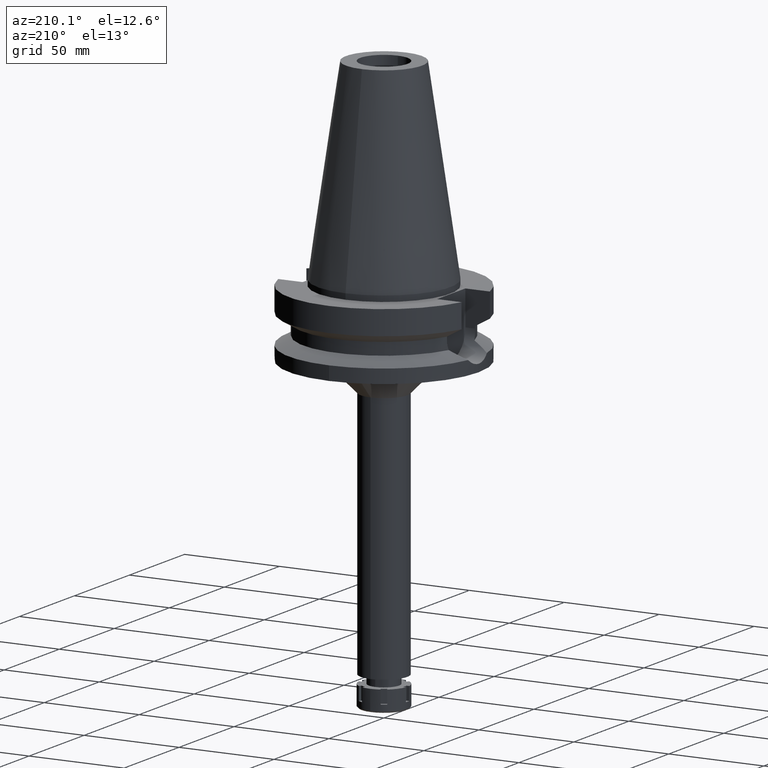
[diagram: clean part render]
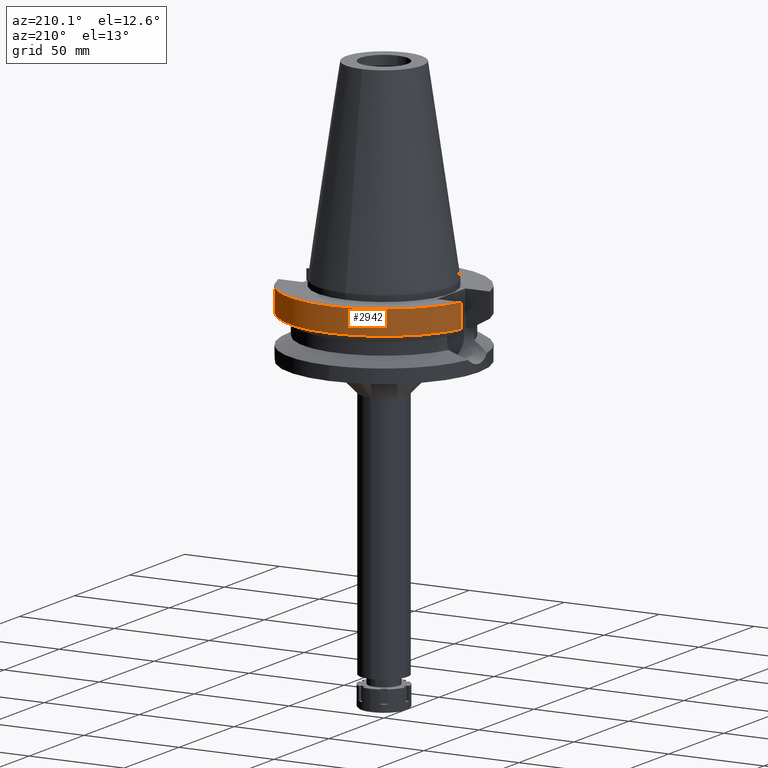
[diagram: same view with one face highlighted and labeled with its STEP entity id]
A machine part, auxiliary view. The second image highlights one B-rep face of the part: STEP entity #2942.
In plain terms, the highlighted cylindrical surface (partial cylindrical patch) has radius 50 mm, axis along (0, 0, -1).
Its self-contained STEP definition (entity closure, byte-faithful):
#27 = CARTESIAN_POINT ( 'NONE',  ( -48.32057015392000210, 12.84999999999999964, -3.000000000000000000 ) ) ;
#42 = DIRECTION ( 'NONE',  ( 8.103406434828602822E-08, 3.047167049311851409E-07, -0.9999999999999503730 ) ) ;
#43 = AXIS2_PLACEMENT_3D ( 'NONE', #3003, #425, #2402 ) ;
#72 = EDGE_CURVE ( 'NONE', #1642, #747, #3582, .T. ) ;
#176 = DIRECTION ( 'NONE',  ( 0.0000000000000000000, 1.000000000000000000, 0.0000000000000000000 ) ) ;
#188 = LINE ( 'NONE', #1082, #1160 ) ;
#424 = CARTESIAN_POINT ( 'NONE',  ( -48.32057015392000210, 12.84999999999999964, -3.000000000000000000 ) ) ;
#425 = DIRECTION ( 'NONE',  ( 0.0000000000000000000, 0.0000000000000000000, -1.000000000000000000 ) ) ;
#602 = EDGE_CURVE ( 'NONE', #1642, #1934, #2245, .T. ) ;
#647 = CARTESIAN_POINT ( 'NONE',  ( 48.32057015392000210, 12.84999999999999964, -3.000000000000000000 ) ) ;
#732 = DIRECTION ( 'NONE',  ( 8.100749521826603165E-08, -3.046167948962851084E-07, 0.9999999999999503730 ) ) ;
#747 = VERTEX_POINT ( 'NONE', #647 ) ;
#903 = CARTESIAN_POINT ( 'NONE',  ( -48.32056912780999625, 12.85000385852000093, -15.66265767138999898 ) ) ;
#965 = ORIENTED_EDGE ( 'NONE', *, *, #2074, .T. ) ;
#1009 = AXIS2_PLACEMENT_3D ( 'NONE', #2319, #1152, #3201 ) ;
#1037 = ORIENTED_EDGE ( 'NONE', *, *, #72, .T. ) ;
#1082 = CARTESIAN_POINT ( 'NONE',  ( 48.32056912815000516, 12.85000385725999905, -15.66265768273000170 ) ) ;
#1152 = DIRECTION ( 'NONE',  ( 0.0000000000000000000, 0.0000000000000000000, -1.000000000000000000 ) ) ;
#1160 = VECTOR ( 'NONE', #732, 1000.000000000000114 ) ;
#1283 = CYLINDRICAL_SURFACE ( 'NONE', #43, 50.00000000000000000 ) ;
#1364 = EDGE_LOOP ( 'NONE', ( #1796, #1037, #2946, #965 ) ) ;
#1642 = VERTEX_POINT ( 'NONE', #424 ) ;
#1683 = EDGE_CURVE ( 'NONE', #2497, #747, #188, .T. ) ;
#1796 = ORIENTED_EDGE ( 'NONE', *, *, #602, .F. ) ;
#1934 = VERTEX_POINT ( 'NONE', #903 ) ;
#2074 = EDGE_CURVE ( 'NONE', #2497, #1934, #3205, .T. ) ;
#2180 = CARTESIAN_POINT ( 'NONE',  ( 48.32056912815000516, 12.85000385725999905, -15.66265768273000170 ) ) ;
#2245 = LINE ( 'NONE', #27, #2636 ) ;
#2319 = CARTESIAN_POINT ( 'NONE',  ( 0.0000000000000000000, 2.652462502272999887E-14, -3.000000000000000000 ) ) ;
#2402 = DIRECTION ( 'NONE',  ( 0.0000000000000000000, -1.000000000000000000, 0.0000000000000000000 ) ) ;
#2428 = AXIS2_PLACEMENT_3D ( 'NONE', #3259, #3555, #176 ) ;
#2497 = VERTEX_POINT ( 'NONE', #2180 ) ;
#2636 = VECTOR ( 'NONE', #42, 1000.000000000000114 ) ;
#2942 = ADVANCED_FACE ( 'NONE', ( #3511 ), #1283, .T. ) ;
#2946 = ORIENTED_EDGE ( 'NONE', *, *, #1683, .F. ) ;
#3003 = CARTESIAN_POINT ( 'NONE',  ( 0.0000000000000000000, 2.652462502272999887E-14, 116.5900000000000034 ) ) ;
#3201 = DIRECTION ( 'NONE',  ( 0.0000000000000000000, 1.000000000000000000, 0.0000000000000000000 ) ) ;
#3205 = CIRCLE ( 'NONE', #2428, 50.00000000000000000 ) ;
#3259 = CARTESIAN_POINT ( 'NONE',  ( 0.0000000000000000000, 1.006319759053999930E-14, -15.66269223573000069 ) ) ;
#3511 = FACE_OUTER_BOUND ( 'NONE', #1364, .T. ) ;
#3555 = DIRECTION ( 'NONE',  ( 0.0000000000000000000, 0.0000000000000000000, 1.000000000000000000 ) ) ;
#3582 = CIRCLE ( 'NONE', #1009, 50.00000000000000000 ) ;